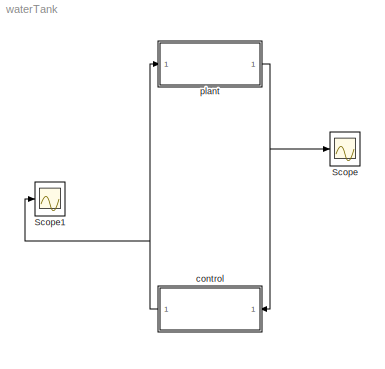
MODEL waterTank
KIND model
BLOCK [Scope] Scope
  DataFormat = StructureWithTime
  Floating = off
  MaxDataPoints = 50000000
  NumInputPorts = 1
  Ports = [1]
  SID = 44
  SampleTime = 0
  ShowLegends = off
  TimeRange = 4000
  YMax = 6
  YMin = 4
  ZoomMode = xonly
BLOCK [Scope] Scope1
  DataFormat = StructureWithTime
  Floating = off
  MaxDataPoints = 50000000
  NumInputPorts = 1
  Ports = [1]
  SID = 45
  SampleTime = 0
  SaveName = ScopeData1
  ShowLegends = off
  TimeRange = 4000
  YMax = 6
  YMin = 4
  ZoomMode = xonly
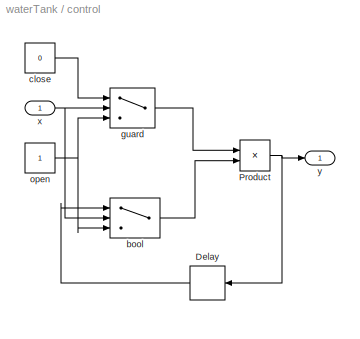
BLOCK [SubSystem] control
  Ports = [1, 1]
  RequestExecContextInheritance = off
  SID = 21
BLOCK [Delay] control/Delay
  DelayLength = 1
  InitialCondition = 0
  InputPortMap = u0
  Ports = [1, 1]
  SID = 48
BLOCK [Product] control/Product
  InputSameDT = off
  OutDataTypeStr = Inherit: Inherit via internal rule
  Ports = [2, 1]
  RndMeth = Floor
  SID = 47
  SampleTime = 1
  SaturateOnIntegerOverflow = off
BLOCK [Switch] control/bool
  Criteria = u2 > Threshold
  InputSameDT = off
  SID = 39
  SampleTime = 1
  SaturateOnIntegerOverflow = off
  Threshold = 4.1
BLOCK [Constant] control/close
  SID = 42
  SampleTime = 1
  Value = 0
BLOCK [Switch] control/guard
  InputSameDT = off
  SID = 38
  SampleTime = 1
  SaturateOnIntegerOverflow = off
  Threshold = 5.9
BLOCK [Constant] control/open
  SID = 43
  SampleTime = 1
BLOCK [Inport] control/x
  IconDisplay = Port number
  SID = 22
  SampleTime = 1
BLOCK [Outport] control/y
  IconDisplay = Port number
  SID = 23
  SampleTime = 1
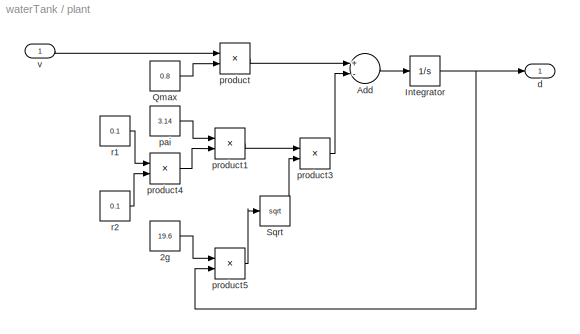
BLOCK [SubSystem] plant
  Ports = [1, 1]
  RequestExecContextInheritance = off
  SID = 18
BLOCK [Constant] plant/2g
  SID = 24
  Value = 19.6
BLOCK [Sum] plant/Add
  InputSameDT = off
  Inputs = +-
  OutDataTypeStr = Inherit: Inherit via internal rule
  Ports = [2, 1]
  SID = 25
  SampleTime = 0
  SaturateOnIntegerOverflow = off
BLOCK [Integrator] plant/Integrator
  InitialCondition = 5
  Ports = [1, 1]
  SID = 26
BLOCK [Constant] plant/Qmax
  SID = 27
  Value = 0.8
BLOCK [Sqrt] plant/Sqrt
  SID = 29
  SampleTime = 0
BLOCK [Outport] plant/d
  IconDisplay = Port number
  SID = 20
BLOCK [Constant] plant/pai
  SID = 30
  Value = 3.14
BLOCK [Product] plant/product
  InputSameDT = off
  Inputs = **
  OutDataTypeStr = Inherit: Inherit via internal rule
  Ports = [2, 1]
  RndMeth = Floor
  SID = 31
  SampleTime = 0
  SaturateOnIntegerOverflow = off
BLOCK [Product] plant/product1
  InputSameDT = off
  Inputs = **
  OutDataTypeStr = Inherit: Inherit via internal rule
  Ports = [2, 1]
  RndMeth = Floor
  SID = 32
  SampleTime = 0
  SaturateOnIntegerOverflow = off
BLOCK [Product] plant/product3
  InputSameDT = off
  Inputs = **
  OutDataTypeStr = Inherit: Inherit via internal rule
  Ports = [2, 1]
  RndMeth = Floor
  SID = 33
  SampleTime = 0
  SaturateOnIntegerOverflow = off
BLOCK [Product] plant/product4
  InputSameDT = off
  Inputs = **
  OutDataTypeStr = Inherit: Inherit via internal rule
  Ports = [2, 1]
  RndMeth = Floor
  SID = 34
  SampleTime = 0
  SaturateOnIntegerOverflow = off
BLOCK [Product] plant/product5
  InputSameDT = off
  Inputs = **
  OutDataTypeStr = Inherit: Inherit via internal rule
  Ports = [2, 1]
  RndMeth = Floor
  SID = 35
  SampleTime = 0
  SaturateOnIntegerOverflow = off
BLOCK [Constant] plant/r1
  SID = 36
  Value = 0.1
BLOCK [Constant] plant/r2
  SID = 37
  Value = 0.1
BLOCK [Inport] plant/v
  IconDisplay = Port number
  SID = 19
LINE control/Delay:1 -> control/bool:1
NET control/Product:1 -> control/Delay:1, control/y:1
LINE control/bool:1 -> control/Product:2
LINE control/close:1 -> control/guard:1
LINE control/guard:1 -> control/Product:1
NET control/open:1 -> control/bool:3, control/guard:3
NET control/x:1 -> control/bool:2, control/guard:2
NET control:1 -> Scope1:1, plant:1
LINE plant/2g:1 -> plant/product5:1
LINE plant/Add:1 -> plant/Integrator:1
NET plant/Integrator:1 -> plant/d:1, plant/product5:2
LINE plant/Qmax:1 -> plant/product:2
LINE plant/Sqrt:1 -> plant/product3:2
LINE plant/pai:1 -> plant/product1:1
LINE plant/product1:1 -> plant/product3:1
LINE plant/product3:1 -> plant/Add:2
LINE plant/product4:1 -> plant/product1:2
LINE plant/product5:1 -> plant/Sqrt:1
LINE plant/product:1 -> plant/Add:1
LINE plant/r1:1 -> plant/product4:1
LINE plant/r2:1 -> plant/product4:2
LINE plant/v:1 -> plant/product:1
NET plant:1 -> Scope:1, control:1
note: NET lines group one-source signal fan-out (src -> all destinations, sorted); 1:1 wires keep LINE
